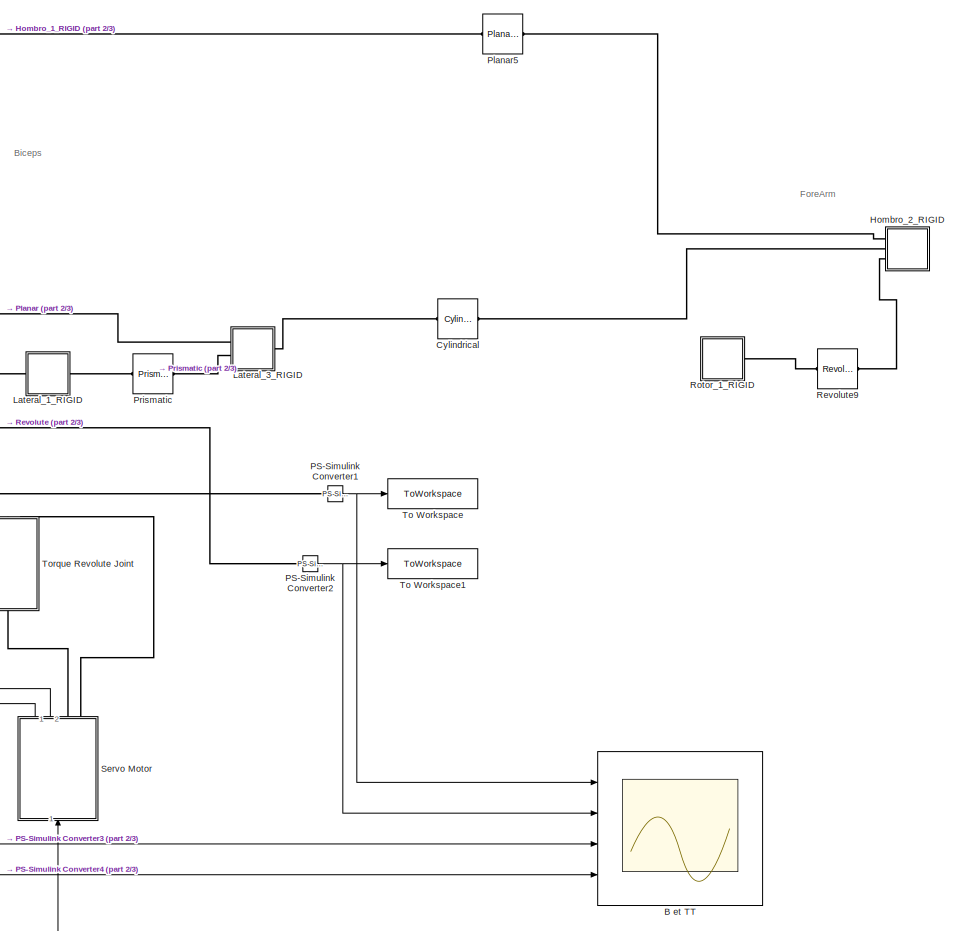
[diagram: root canvas - part 1/3, top right region]
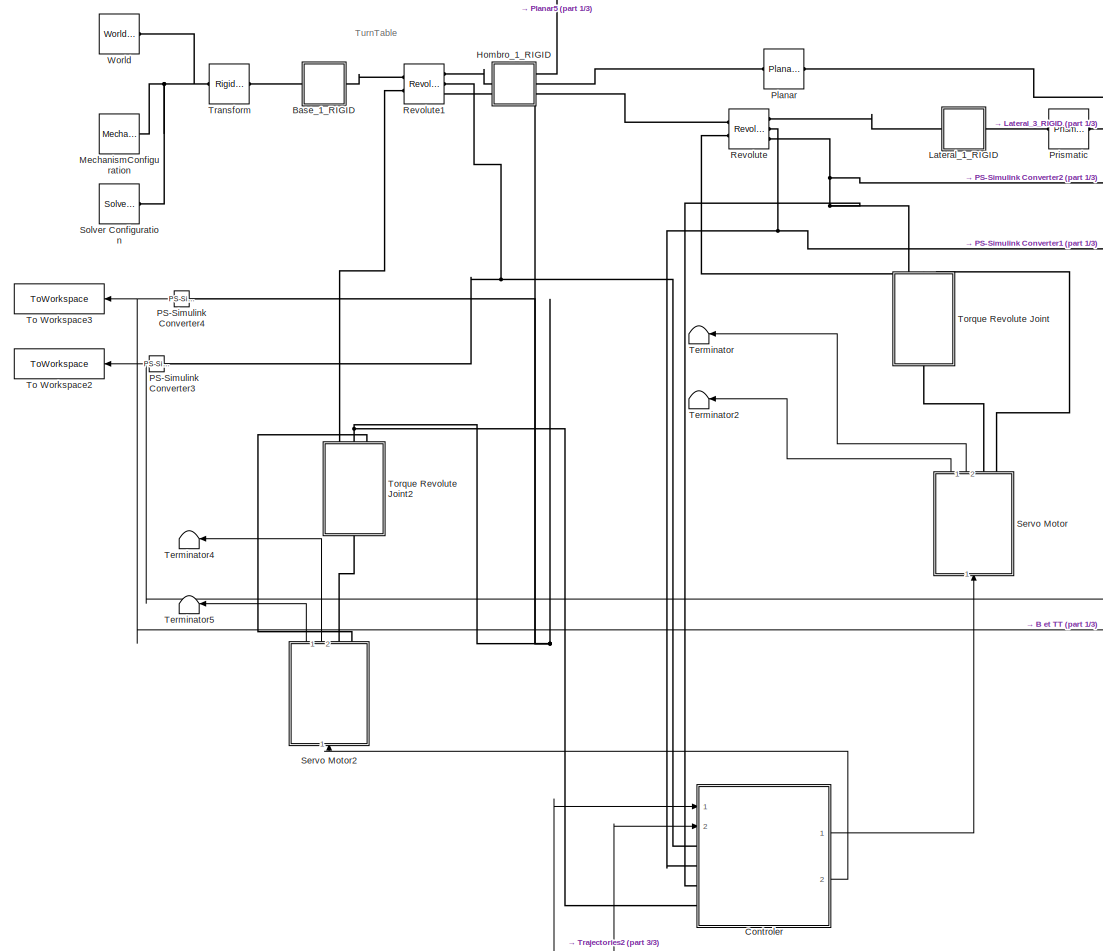
[diagram: root canvas - part 2/3, middle left region]
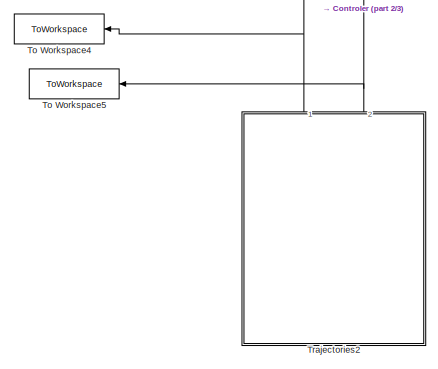
[diagram: root canvas - part 3/3, bottom left region]
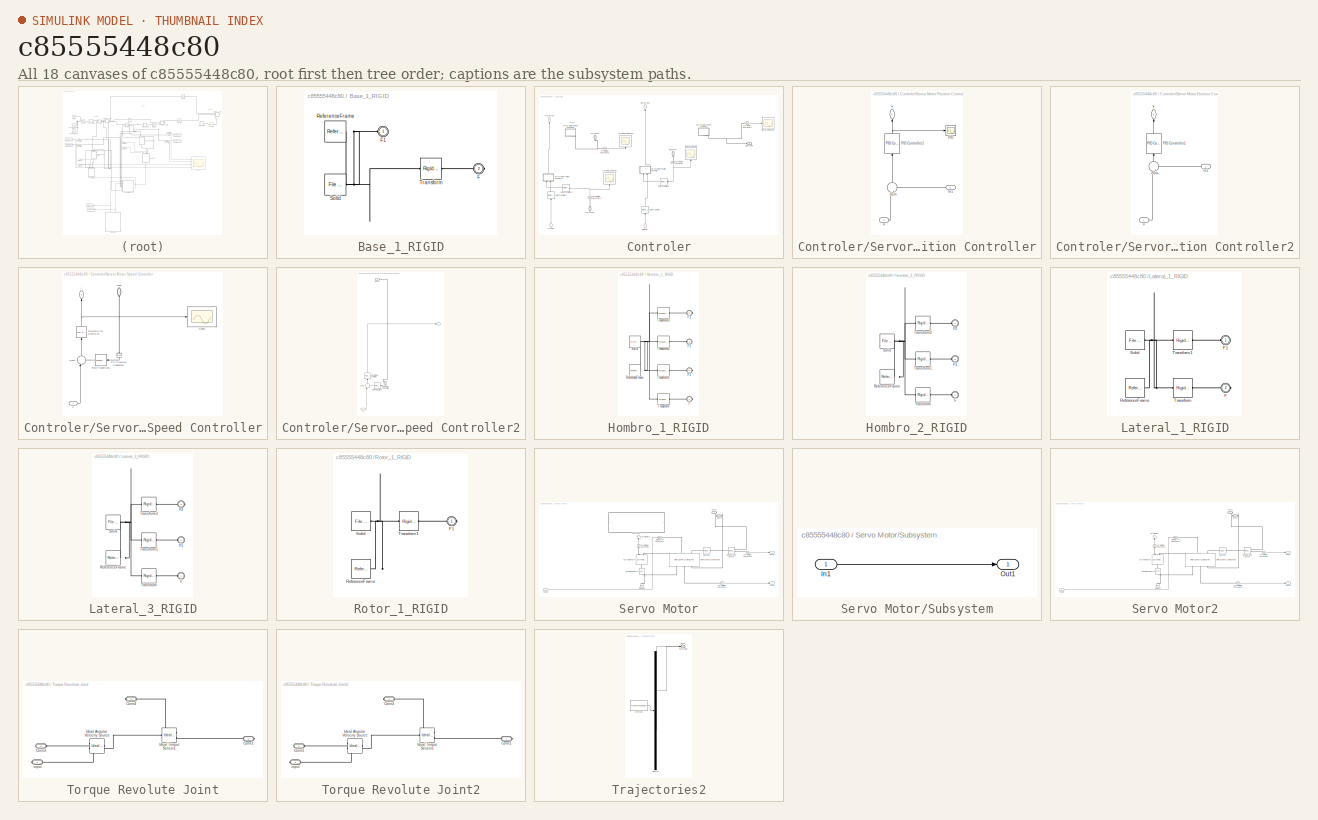
[diagram: thumbnail index - all 18 canvases of the model, root first then tree order]
MODEL slx_c85555448c80
KIND model
CONFIG AbsTol = auto
CONFIG EnableMultiTasking = off
CONFIG FixedStep = auto
CONFIG MaxStep = auto
CONFIG MinStep = auto
CONFIG RelTol = 1e-3
CONFIG SampleTimeConstraint = Unconstrained
CONFIG SolverName = VariableStepAuto
CONFIG StartTime = 0.0
CONFIG StopTime = 60
WORKSPACE source: external: MATLAB File  (data not in archive)
BLOCK [Scope] B et TT
  Floating = off
  NumInputPorts = 4
  Ports = [4]
  ScopeSpecificationString = Simulink.scopes.TimeScopeBlockCfg('CurrentConfiguration', extmgr.ConfigurationSet(extmgr.Configuration('Core','General UI',true),extmgr.Configuration('Core','Source UI',true),extmgr.Configuration('Sources','WiredSimulink',true,'DataLoggingVariableName','ScopeData7'),extmgr.Configuration('Visuals','Time Domain',true,'SerializedDisplays',{struct('MinYLimReal','-223.57397','MaxYLimReal','1936.09273',...<+3539ch>
BLOCK [SubSystem] Base_1_RIGID
  Ports = [0, 0, 0, 0, 0, 1, 1]
  RequestExecContextInheritance = off
BLOCK [PMIOPort] Base_1_RIGID/F
  Port = 2
  Side = Right
BLOCK [PMIOPort] Base_1_RIGID/F1
  Side = Left
BLOCK [Reference] Base_1_RIGID/ReferenceFrame  REF=sm_lib/Frames and
Transforms/Reference
Frame
  Ports = [0, 0, 0, 0, 0, 0, 1]
  SourceBlock = sm_lib/Frames and\nTransforms/Reference\nFrame
  SourceProductBaseCode = MS
  SourceType = Reference\nFrame
BLOCK [Reference] Base_1_RIGID/Solid  REF=sm_lib/Body Elements/File Solid
  Ports = [0, 0, 0, 0, 0, 0, 1]
  SourceBlock = sm_lib/Body Elements/File Solid
  SourceProductBaseCode = MS
  SourceType = File Solid
BLOCK [Reference] Base_1_RIGID/Transform  REF=sm_lib/Frames and
Transforms/Rigid
Transform
  Ports = [0, 0, 0, 0, 0, 1, 1]
  SourceBlock = sm_lib/Frames and\nTransforms/Rigid\nTransform
  SourceProductBaseCode = MS
  SourceType = Rigid\nTransform
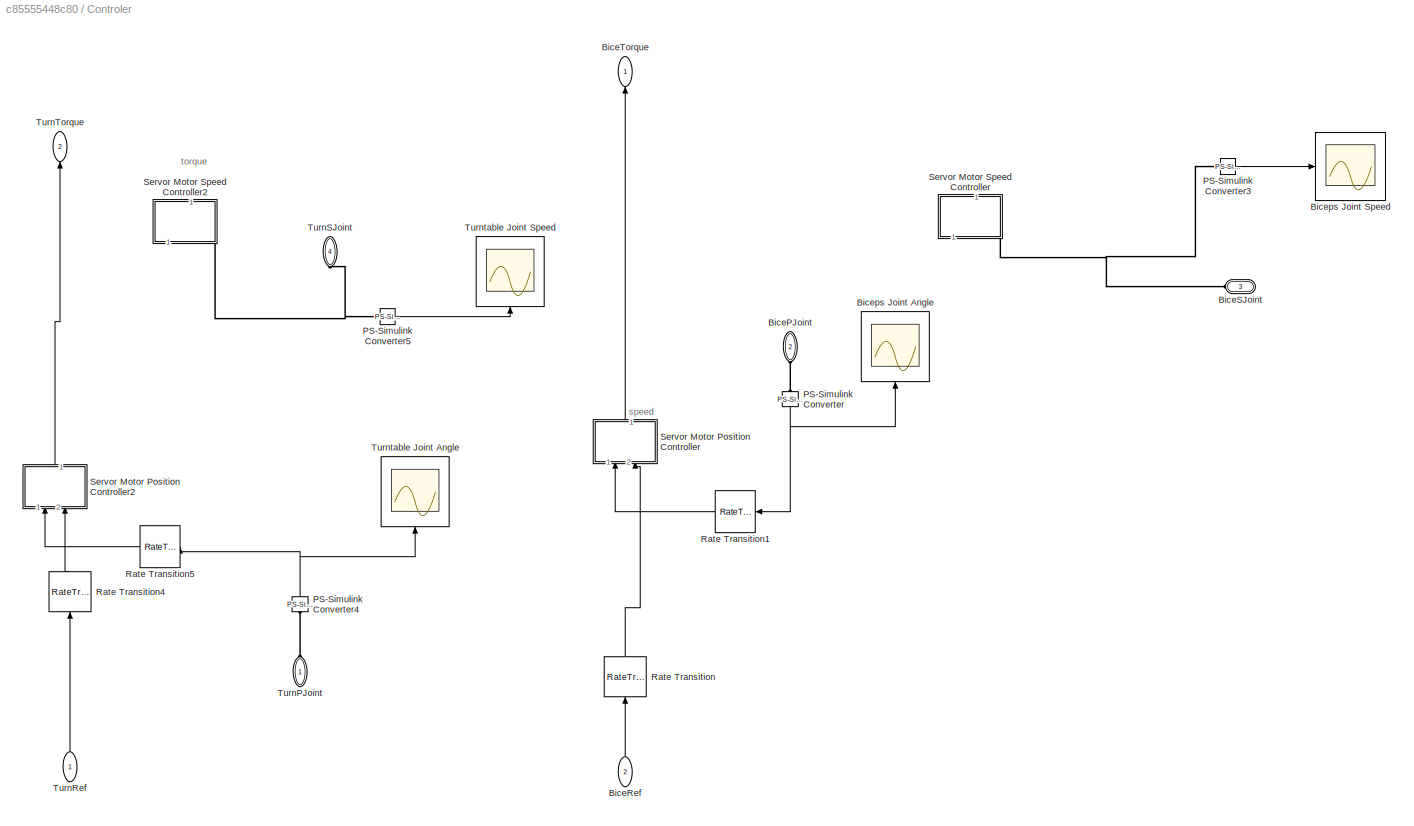
BLOCK [SubSystem] Controler
  Ports = [2, 2, 0, 0, 0, 4]
  RequestExecContextInheritance = off
BLOCK [PMIOPort] Controler/BicePJoint
  NameLocation = left
  Port = 2
  Side = Left
BLOCK [Inport] Controler/BiceRef
  NameLocation = right
  Port = 2
BLOCK [PMIOPort] Controler/BiceSJoint
  NameLocation = top
  Port = 3
  Side = Left
BLOCK [Outport] Controler/BiceTorque
  NameLocation = right
BLOCK [Scope] Controler/Biceps Joint Angle
  Floating = off
  NameLocation = right
  NumInputPorts = 1
  Ports = [1]
  ScopeSpecificationString = Simulink.scopes.TimeScopeBlockCfg('CurrentConfiguration', extmgr.ConfigurationSet(extmgr.Configuration('Core','General UI',true),extmgr.Configuration('Core','Source UI',true),extmgr.Configuration('Sources','WiredSimulink',true),extmgr.Configuration('Visuals','Time Domain',true,'SerializedDisplays',{struct('MinYLimReal','-223.57397','MaxYLimReal','1936.09273','YLabelReal','','MinYLimMag',' 0.00000'...<+1420ch>
BLOCK [Scope] Controler/Biceps Joint Speed
  Floating = off
  NumInputPorts = 1
  Ports = [1]
  ScopeSpecificationString = Simulink.scopes.TimeScopeBlockCfg('CurrentConfiguration', extmgr.ConfigurationSet(extmgr.Configuration('Core','General UI',true),extmgr.Configuration('Core','Source UI',true),extmgr.Configuration('Sources','WiredSimulink',true,'DataLoggingVariableName','ScopeData2'),extmgr.Configuration('Visuals','Time Domain',true,'SerializedDisplays',{struct('MinYLimReal','-245.5225','MaxYLimReal','244.94117','Y...<+1452ch>
BLOCK [Reference] Controler/PS-Simulink Converter  REF=nesl_utility/PS-Simulink
Converter
  NameLocation = left
  Ports = [0, 1, 0, 0, 0, 1]
  SourceBlock = nesl_utility/PS-Simulink\nConverter
  SourceProductBaseCode = PW,SS
  SourceType = PS-Simulink\nConverter
BLOCK [Reference] Controler/PS-Simulink Converter3  REF=nesl_utility/PS-Simulink
Converter
  Ports = [0, 1, 0, 0, 0, 1]
  SourceBlock = nesl_utility/PS-Simulink\nConverter
  SourceProductBaseCode = PW,SS
  SourceType = PS-Simulink\nConverter
BLOCK [Reference] Controler/PS-Simulink Converter4  REF=nesl_utility/PS-Simulink
Converter
  NameLocation = right
  Ports = [0, 1, 0, 0, 0, 1]
  SourceBlock = nesl_utility/PS-Simulink\nConverter
  SourceProductBaseCode = PW,SS
  SourceType = PS-Simulink\nConverter
BLOCK [Reference] Controler/PS-Simulink Converter5  REF=nesl_utility/PS-Simulink
Converter
  Ports = [0, 1, 0, 0, 0, 1]
  SourceBlock = nesl_utility/PS-Simulink\nConverter
  SourceProductBaseCode = PW,SS
  SourceType = PS-Simulink\nConverter
BLOCK [RateTransition] Controler/Rate Transition
  NameLocation = right
BLOCK [RateTransition] Controler/Rate Transition1
  NameLocation = top
BLOCK [RateTransition] Controler/Rate Transition4
  NameLocation = right
BLOCK [RateTransition] Controler/Rate Transition5
  NameLocation = top
BLOCK [SubSystem] Controler/Servor Motor Position Controller
  NameLocation = right
  Ports = [2, 1]
  RequestExecContextInheritance = off
BLOCK [Inport] Controler/Servor Motor Position Controller/In1
  NameLocation = top
BLOCK [Scope] Controler/Servor Motor Position Controller/PID
  Floating = off
  NumInputPorts = 1
  Ports = [1]
  ScopeSpecificationString = Simulink.scopes.TimeScopeBlockCfg('CurrentConfiguration', extmgr.ConfigurationSet(extmgr.Configuration('Core','General UI',true),extmgr.Configuration('Core','Source UI',true),extmgr.Configuration('Sources','WiredSimulink',true,'DataLoggingVariableName','ScopeData1'),extmgr.Configuration('Visuals','Time Domain',true,'SerializedDisplays',{struct('MinYLimReal','-53478.92336','MaxYLimReal','335741.902...<+1442ch>
BLOCK [Reference] Controler/Servor Motor Position Controller/PID Controller1  REF=pid_lib/PID Controller
  NameLocation = right
  Ports = [1, 1]
  SourceBlock = pid_lib/PID Controller
  SourceProductBaseCode = SL
  SourceType = PID 1dof
BLOCK [Sum] Controler/Servor Motor Position Controller/Sum
  Inputs = |+-
  NameLocation = right
  Ports = [2, 1]
BLOCK [Inport] Controler/Servor Motor Position Controller/u
  Port = 2
BLOCK [Outport] Controler/Servor Motor Position Controller/y
  NameLocation = right
BLOCK [SubSystem] Controler/Servor Motor Position Controller2
  NameLocation = right
  Ports = [2, 1]
  RequestExecContextInheritance = off
BLOCK [Inport] Controler/Servor Motor Position Controller2/In1
  NameLocation = top
BLOCK [Reference] Controler/Servor Motor Position Controller2/PID Controller1  REF=pid_lib/PID Controller
  NameLocation = right
  Ports = [1, 1]
  SourceBlock = pid_lib/PID Controller
  SourceProductBaseCode = SL
  SourceType = PID 1dof
BLOCK [Sum] Controler/Servor Motor Position Controller2/Sum
  Inputs = |+-
  NameLocation = right
  Ports = [2, 1]
BLOCK [Inport] Controler/Servor Motor Position Controller2/u
  Port = 2
BLOCK [Outport] Controler/Servor Motor Position Controller2/y
  NameLocation = right
BLOCK [SubSystem] Controler/Servor Motor Speed Controller
  NameLocation = right
  Ports = [1, 1, 0, 0, 0, 1]
  RequestExecContextInheritance = off
BLOCK [Reference] Controler/Servor Motor Speed Controller/Discrete PID Controller  REF=pid_lib/PID Controller
  NameLocation = right
  Ports = [1, 1]
  SourceBlock = pid_lib/PID Controller
  SourceProductBaseCode = SL
  SourceType = PID 1dof
BLOCK [Reference] Controler/Servor Motor Speed Controller/PS-Simulink Converter1  REF=nesl_utility/PS-Simulink
Converter
  NameLocation = left
  Ports = [0, 1, 0, 0, 0, 1]
  SourceBlock = nesl_utility/PS-Simulink\nConverter
  SourceProductBaseCode = PW,SS
  SourceType = PS-Simulink\nConverter
BLOCK [RateTransition] Controler/Servor Motor Speed Controller/Rate Transition1
  NameLocation = top
BLOCK [Scope] Controler/Servor Motor Speed Controller/Speed
  Floating = off
  NumInputPorts = 1
  Ports = [1]
  ScopeSpecificationString = Simulink.scopes.TimeScopeBlockCfg('CurrentConfiguration', extmgr.ConfigurationSet(extmgr.Configuration('Core','General UI',true),extmgr.Configuration('Core','Source UI',true),extmgr.Configuration('Sources','WiredSimulink',true,'DataLoggingVariableName','ScopeData2'),extmgr.Configuration('Visuals','Time Domain',true,'SerializedDisplays',{struct('MinYLimReal','-42854.82755','MaxYLimReal','43824.0057...<+1448ch>
BLOCK [Sum] Controler/Servor Motor Speed Controller/Sum1
  Inputs = |+-
  NameLocation = right
  Ports = [2, 1]
BLOCK [PMIOPort] Controler/Servor Motor Speed Controller/input
  NameLocation = left
  Side = Left
BLOCK [Inport] Controler/Servor Motor Speed Controller/u
BLOCK [Outport] Controler/Servor Motor Speed Controller/y
  NameLocation = right
BLOCK [SubSystem] Controler/Servor Motor Speed Controller2
  NameLocation = right
  Ports = [1, 1, 0, 0, 0, 1]
  RequestExecContextInheritance = off
BLOCK [Reference] Controler/Servor Motor Speed Controller2/Discrete PID Controller  REF=pid_lib/PID Controller
  NameLocation = right
  Ports = [1, 1]
  SourceBlock = pid_lib/PID Controller
  SourceProductBaseCode = SL
  SourceType = PID 1dof
BLOCK [Reference] Controler/Servor Motor Speed Controller2/PS-Simulink Converter1  REF=nesl_utility/PS-Simulink
Converter
  NameLocation = left
  Ports = [0, 1, 0, 0, 0, 1]
  SourceBlock = nesl_utility/PS-Simulink\nConverter
  SourceProductBaseCode = PW,SS
  SourceType = PS-Simulink\nConverter
BLOCK [RateTransition] Controler/Servor Motor Speed Controller2/Rate Transition1
  NameLocation = top
BLOCK [Sum] Controler/Servor Motor Speed Controller2/Sum1
  Inputs = |+-
  NameLocation = right
  Ports = [2, 1]
BLOCK [PMIOPort] Controler/Servor Motor Speed Controller2/input
  Side = Left
BLOCK [Inport] Controler/Servor Motor Speed Controller2/u
BLOCK [Outport] Controler/Servor Motor Speed Controller2/y
BLOCK [PMIOPort] Controler/TurnPJoint
  NameLocation = right
  Side = Left
BLOCK [Inport] Controler/TurnRef
  NameLocation = right
BLOCK [PMIOPort] Controler/TurnSJoint
  NameLocation = left
  Port = 4
  Side = Left
BLOCK [Outport] Controler/TurnTorque
  NameLocation = right
  Port = 2
BLOCK [Scope] Controler/Turntable Joint Angle
  Floating = off
  NameLocation = right
  NumInputPorts = 1
  Ports = [1]
  ScopeSpecificationString = Simulink.scopes.TimeScopeBlockCfg('CurrentConfiguration', extmgr.ConfigurationSet(extmgr.Configuration('Core','General UI',true),extmgr.Configuration('Core','Source UI',true),extmgr.Configuration('Sources','WiredSimulink',true,'DataLoggingVariableName','ScopeData3'),extmgr.Configuration('Visuals','Time Domain',true,'SerializedDisplays',{struct('MinYLimReal','-2839.05971','MaxYLimReal','314.02025',...<+1460ch>
BLOCK [Scope] Controler/Turntable Joint Speed
  Floating = off
  NameLocation = right
  NumInputPorts = 1
  Ports = [1]
  ScopeSpecificationString = Simulink.scopes.TimeScopeBlockCfg('CurrentConfiguration', extmgr.ConfigurationSet(extmgr.Configuration('Core','General UI',true),extmgr.Configuration('Core','Source UI',true),extmgr.Configuration('Sources','WiredSimulink',true,'DataLoggingVariableName','ScopeData4'),extmgr.Configuration('Visuals','Time Domain',true,'SerializedDisplays',{struct('MinYLimReal','-33.83671','MaxYLimReal','32.88338','YL...<+1448ch>
BLOCK [Reference] Cylindrical  REF=sm_lib/Joints/Cylindrical
Joint
  Ports = [0, 0, 0, 0, 0, 1, 1]
  SourceBlock = sm_lib/Joints/Cylindrical\nJoint
  SourceProductBaseCode = MS
  SourceType = Cylindrical\nJoint
BLOCK [SubSystem] Hombro_1_RIGID
  Ports = [0, 0, 0, 0, 0, 1, 3]
  RequestExecContextInheritance = off
BLOCK [PMIOPort] Hombro_1_RIGID/F
  Port = 4
  Side = Right
BLOCK [PMIOPort] Hombro_1_RIGID/F1
  Port = 3
  Side = Right
BLOCK [PMIOPort] Hombro_1_RIGID/F2
  Side = Left
BLOCK [PMIOPort] Hombro_1_RIGID/F3
  Port = 2
  Side = Right
BLOCK [Reference] Hombro_1_RIGID/ReferenceFrame  REF=sm_lib/Frames and
Transforms/Reference
Frame
  Ports = [0, 0, 0, 0, 0, 0, 1]
  SourceBlock = sm_lib/Frames and\nTransforms/Reference\nFrame
  SourceProductBaseCode = MS
  SourceType = Reference\nFrame
BLOCK [Reference] Hombro_1_RIGID/Solid  REF=sm_lib/Body Elements/File Solid
  Ports = [0, 0, 0, 0, 0, 0, 1]
  SourceBlock = sm_lib/Body Elements/File Solid
  SourceProductBaseCode = MS
  SourceType = File Solid
BLOCK [Reference] Hombro_1_RIGID/Transform  REF=sm_lib/Frames and
Transforms/Rigid
Transform
  Ports = [0, 0, 0, 0, 0, 1, 1]
  SourceBlock = sm_lib/Frames and\nTransforms/Rigid\nTransform
  SourceProductBaseCode = MS
  SourceType = Rigid\nTransform
BLOCK [Reference] Hombro_1_RIGID/Transform1  REF=sm_lib/Frames and
Transforms/Rigid
Transform
  Ports = [0, 0, 0, 0, 0, 1, 1]
  SourceBlock = sm_lib/Frames and\nTransforms/Rigid\nTransform
  SourceProductBaseCode = MS
  SourceType = Rigid\nTransform
BLOCK [Reference] Hombro_1_RIGID/Transform2  REF=sm_lib/Frames and
Transforms/Rigid
Transform
  Ports = [0, 0, 0, 0, 0, 1, 1]
  SourceBlock = sm_lib/Frames and\nTransforms/Rigid\nTransform
  SourceProductBaseCode = MS
  SourceType = Rigid\nTransform
BLOCK [Reference] Hombro_1_RIGID/Transform3  REF=sm_lib/Frames and
Transforms/Rigid
Transform
  Ports = [0, 0, 0, 0, 0, 1, 1]
  SourceBlock = sm_lib/Frames and\nTransforms/Rigid\nTransform
  SourceProductBaseCode = MS
  SourceType = Rigid\nTransform
BLOCK [SubSystem] Hombro_2_RIGID
  Ports = [0, 0, 0, 0, 0, 3]
  RequestExecContextInheritance = off
BLOCK [PMIOPort] Hombro_2_RIGID/F
  Port = 2
  Side = Left
BLOCK [PMIOPort] Hombro_2_RIGID/F1
  Port = 3
  Side = Left
BLOCK [PMIOPort] Hombro_2_RIGID/F2
  Side = Left
BLOCK [Reference] Hombro_2_RIGID/ReferenceFrame  REF=sm_lib/Frames and
Transforms/Reference
Frame
  Ports = [0, 0, 0, 0, 0, 0, 1]
  SourceBlock = sm_lib/Frames and\nTransforms/Reference\nFrame
  SourceProductBaseCode = MS
  SourceType = Reference\nFrame
BLOCK [Reference] Hombro_2_RIGID/Solid  REF=sm_lib/Body Elements/File Solid
  Ports = [0, 0, 0, 0, 0, 0, 1]
  SourceBlock = sm_lib/Body Elements/File Solid
  SourceProductBaseCode = MS
  SourceType = File Solid
BLOCK [Reference] Hombro_2_RIGID/Transform  REF=sm_lib/Frames and
Transforms/Rigid
Transform
  Ports = [0, 0, 0, 0, 0, 1, 1]
  SourceBlock = sm_lib/Frames and\nTransforms/Rigid\nTransform
  SourceProductBaseCode = MS
  SourceType = Rigid\nTransform
BLOCK [Reference] Hombro_2_RIGID/Transform1  REF=sm_lib/Frames and
Transforms/Rigid
Transform
  Ports = [0, 0, 0, 0, 0, 1, 1]
  SourceBlock = sm_lib/Frames and\nTransforms/Rigid\nTransform
  SourceProductBaseCode = MS
  SourceType = Rigid\nTransform
BLOCK [Reference] Hombro_2_RIGID/Transform2  REF=sm_lib/Frames and
Transforms/Rigid
Transform
  Ports = [0, 0, 0, 0, 0, 1, 1]
  SourceBlock = sm_lib/Frames and\nTransforms/Rigid\nTransform
  SourceProductBaseCode = MS
  SourceType = Rigid\nTransform
BLOCK [SubSystem] Lateral_1_RIGID
  Ports = [0, 0, 0, 0, 0, 1, 1]
  RequestExecContextInheritance = off
BLOCK [PMIOPort] Lateral_1_RIGID/F
  Port = 2
  Side = Right
BLOCK [PMIOPort] Lateral_1_RIGID/F1
  Side = Left
BLOCK [Reference] Lateral_1_RIGID/ReferenceFrame  REF=sm_lib/Frames and
Transforms/Reference
Frame
  Ports = [0, 0, 0, 0, 0, 0, 1]
  SourceBlock = sm_lib/Frames and\nTransforms/Reference\nFrame
  SourceProductBaseCode = MS
  SourceType = Reference\nFrame
BLOCK [Reference] Lateral_1_RIGID/Solid  REF=sm_lib/Body Elements/File Solid
  Ports = [0, 0, 0, 0, 0, 0, 1]
  SourceBlock = sm_lib/Body Elements/File Solid
  SourceProductBaseCode = MS
  SourceType = File Solid
BLOCK [Reference] Lateral_1_RIGID/Transform  REF=sm_lib/Frames and
Transforms/Rigid
Transform
  Ports = [0, 0, 0, 0, 0, 1, 1]
  SourceBlock = sm_lib/Frames and\nTransforms/Rigid\nTransform
  SourceProductBaseCode = MS
  SourceType = Rigid\nTransform
BLOCK [Reference] Lateral_1_RIGID/Transform1  REF=sm_lib/Frames and
Transforms/Rigid
Transform
  Ports = [0, 0, 0, 0, 0, 1, 1]
  SourceBlock = sm_lib/Frames and\nTransforms/Rigid\nTransform
  SourceProductBaseCode = MS
  SourceType = Rigid\nTransform
BLOCK [SubSystem] Lateral_3_RIGID
  Ports = [0, 0, 0, 0, 0, 2, 1]
  RequestExecContextInheritance = off
BLOCK [PMIOPort] Lateral_3_RIGID/F
  Port = 2
  Side = Left
BLOCK [PMIOPort] Lateral_3_RIGID/F1
  Side = Left
BLOCK [PMIOPort] Lateral_3_RIGID/F2
  Port = 3
  Side = Right
BLOCK [Reference] Lateral_3_RIGID/ReferenceFrame  REF=sm_lib/Frames and
Transforms/Reference
Frame
  Ports = [0, 0, 0, 0, 0, 0, 1]
  SourceBlock = sm_lib/Frames and\nTransforms/Reference\nFrame
  SourceProductBaseCode = MS
  SourceType = Reference\nFrame
BLOCK [Reference] Lateral_3_RIGID/Solid  REF=sm_lib/Body Elements/File Solid
  Ports = [0, 0, 0, 0, 0, 0, 1]
  SourceBlock = sm_lib/Body Elements/File Solid
  SourceProductBaseCode = MS
  SourceType = File Solid
BLOCK [Reference] Lateral_3_RIGID/Transform  REF=sm_lib/Frames and
Transforms/Rigid
Transform
  Ports = [0, 0, 0, 0, 0, 1, 1]
  SourceBlock = sm_lib/Frames and\nTransforms/Rigid\nTransform
  SourceProductBaseCode = MS
  SourceType = Rigid\nTransform
BLOCK [Reference] Lateral_3_RIGID/Transform1  REF=sm_lib/Frames and
Transforms/Rigid
Transform
  Ports = [0, 0, 0, 0, 0, 1, 1]
  SourceBlock = sm_lib/Frames and\nTransforms/Rigid\nTransform
  SourceProductBaseCode = MS
  SourceType = Rigid\nTransform
BLOCK [Reference] Lateral_3_RIGID/Transform2  REF=sm_lib/Frames and
Transforms/Rigid
Transform
  Ports = [0, 0, 0, 0, 0, 1, 1]
  SourceBlock = sm_lib/Frames and\nTransforms/Rigid\nTransform
  SourceProductBaseCode = MS
  SourceType = Rigid\nTransform
BLOCK [Reference] MechanismConfiguration  REF=sm_lib/Utilities/Mechanism
Configuration
  Ports = [0, 0, 0, 0, 0, 0, 1]
  SourceBlock = sm_lib/Utilities/Mechanism\nConfiguration
  SourceProductBaseCode = MS
  SourceType = Mechanism\nConfiguration
BLOCK [Reference] PS-Simulink Converter1  REF=nesl_utility/PS-Simulink
Converter
  Ports = [0, 1, 0, 0, 0, 1]
  SourceBlock = nesl_utility/PS-Simulink\nConverter
  SourceProductBaseCode = PW,SS
  SourceType = PS-Simulink\nConverter
BLOCK [Reference] PS-Simulink Converter2  REF=nesl_utility/PS-Simulink
Converter
  Ports = [0, 1, 0, 0, 0, 1]
  SourceBlock = nesl_utility/PS-Simulink\nConverter
  SourceProductBaseCode = PW,SS
  SourceType = PS-Simulink\nConverter
BLOCK [Reference] PS-Simulink Converter3  REF=nesl_utility/PS-Simulink
Converter
  NameLocation = top
  Ports = [0, 1, 0, 0, 0, 1]
  SourceBlock = nesl_utility/PS-Simulink\nConverter
  SourceProductBaseCode = PW,SS
  SourceType = PS-Simulink\nConverter
BLOCK [Reference] PS-Simulink Converter4  REF=nesl_utility/PS-Simulink
Converter
  NameLocation = top
  Ports = [0, 1, 0, 0, 0, 1]
  SourceBlock = nesl_utility/PS-Simulink\nConverter
  SourceProductBaseCode = PW,SS
  SourceType = PS-Simulink\nConverter
BLOCK [Reference] Planar  REF=sm_lib/Joints/Planar Joint
  Ports = [0, 0, 0, 0, 0, 1, 1]
  SourceBlock = sm_lib/Joints/Planar Joint
  SourceProductBaseCode = MS
  SourceType = Planar Joint
BLOCK [Reference] Planar5  REF=sm_lib/Joints/Planar Joint
  Ports = [0, 0, 0, 0, 0, 1, 1]
  SourceBlock = sm_lib/Joints/Planar Joint
  SourceProductBaseCode = MS
  SourceType = Planar Joint
BLOCK [Reference] Prismatic  REF=sm_lib/Joints/Prismatic
Joint
  Ports = [0, 0, 0, 0, 0, 1, 1]
  SourceBlock = sm_lib/Joints/Prismatic\nJoint
  SourceProductBaseCode = MS
  SourceType = Prismatic\nJoint
BLOCK [Reference] Revolute  REF=sm_lib/Joints/Revolute Joint
  Ports = [0, 0, 0, 0, 0, 2, 3]
  SourceBlock = sm_lib/Joints/Revolute Joint
  SourceProductBaseCode = MS
  SourceType = Revolute Joint
BLOCK [Reference] Revolute1  REF=sm_lib/Joints/Revolute Joint
  Ports = [0, 0, 0, 0, 0, 2, 3]
  SourceBlock = sm_lib/Joints/Revolute Joint
  SourceProductBaseCode = MS
  SourceType = Revolute Joint
BLOCK [Reference] Revolute9  REF=sm_lib/Joints/Revolute Joint
  Ports = [0, 0, 0, 0, 0, 1, 1]
  SourceBlock = sm_lib/Joints/Revolute Joint
  SourceProductBaseCode = MS
  SourceType = Revolute Joint
BLOCK [SubSystem] Rotor_1_RIGID
  Ports = [0, 0, 0, 0, 0, 0, 1]
  RequestExecContextInheritance = off
BLOCK [PMIOPort] Rotor_1_RIGID/F1
  Side = Right
BLOCK [Reference] Rotor_1_RIGID/ReferenceFrame  REF=sm_lib/Frames and
Transforms/Reference
Frame
  Ports = [0, 0, 0, 0, 0, 0, 1]
  SourceBlock = sm_lib/Frames and\nTransforms/Reference\nFrame
  SourceProductBaseCode = MS
  SourceType = Reference\nFrame
BLOCK [Reference] Rotor_1_RIGID/Solid  REF=sm_lib/Body Elements/File Solid
  Ports = [0, 0, 0, 0, 0, 0, 1]
  SourceBlock = sm_lib/Body Elements/File Solid
  SourceProductBaseCode = MS
  SourceType = File Solid
BLOCK [Reference] Rotor_1_RIGID/Transform1  REF=sm_lib/Frames and
Transforms/Rigid
Transform
  Ports = [0, 0, 0, 0, 0, 1, 1]
  SourceBlock = sm_lib/Frames and\nTransforms/Rigid\nTransform
  SourceProductBaseCode = MS
  SourceType = Rigid\nTransform
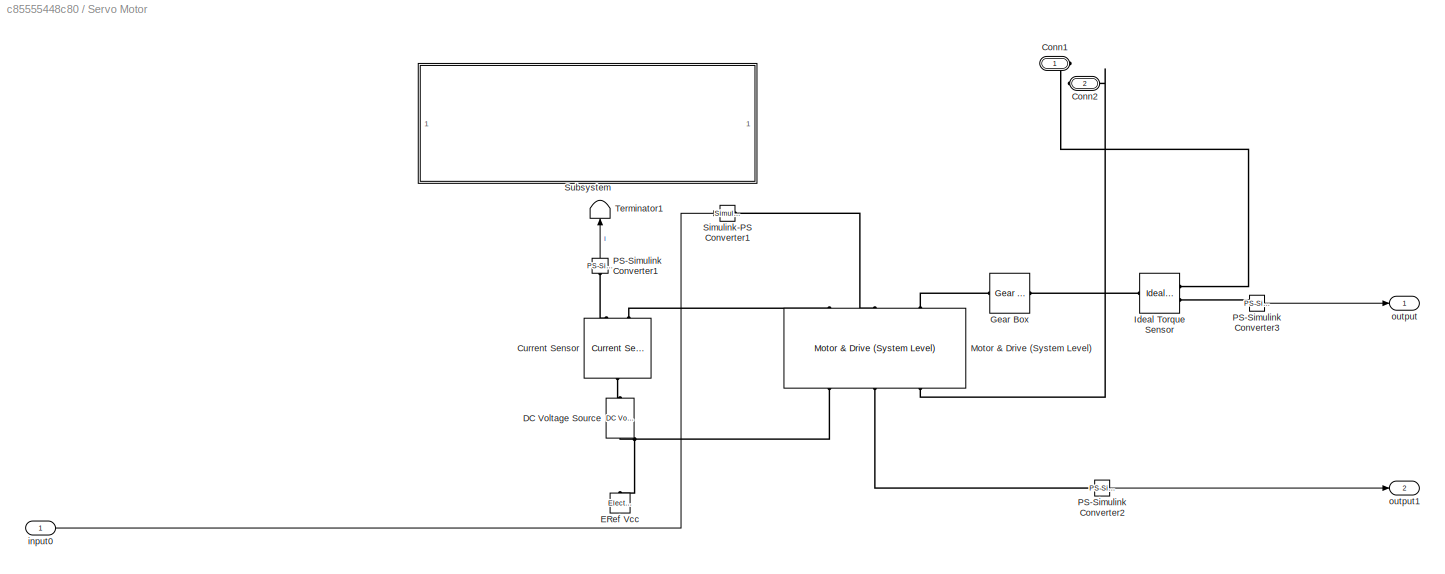
BLOCK [SubSystem] Servo Motor
  NameLocation = right
  Ports = [1, 2, 0, 0, 0, 0, 2]
  RequestExecContextInheritance = off
BLOCK [PMIOPort] Servo Motor/Conn1
  Side = Right
BLOCK [PMIOPort] Servo Motor/Conn2
  Port = 2
  Side = Right
BLOCK [Reference] Servo Motor/Current Sensor  REF=fl_lib/Electrical/Electrical Sensors/Current Sensor
  NameLocation = right
  Ports = [0, 0, 0, 0, 0, 1, 2]
  SourceBlock = fl_lib/Electrical/Electrical Sensors/Current Sensor
  SourceProductBaseCode = SS
  SourceType = Current Sensor
BLOCK [Reference] Servo Motor/DC Voltage Source  REF=fl_lib/Electrical/Electrical Sources/DC Voltage Source
  NameLocation = right
  Ports = [0, 0, 0, 0, 0, 1, 1]
  SourceBlock = fl_lib/Electrical/Electrical Sources/DC Voltage Source
  SourceProductBaseCode = SS
  SourceType = DC Voltage Source
BLOCK [Reference] Servo Motor/ERef Vcc  REF=fl_lib/Electrical/Electrical Elements/Electrical Reference
  NameLocation = right
  Ports = [0, 0, 0, 0, 0, 1]
  SourceBlock = fl_lib/Electrical/Electrical Elements/Electrical Reference
  SourceProductName = Foundation Library
  SourceType = Electrical Reference
BLOCK [Reference] Servo Motor/Gear Box  REF=fl_lib/Mechanical/Mechanisms/Gear Box
  Ports = [0, 0, 0, 0, 0, 1, 1]
  SourceBlock = fl_lib/Mechanical/Mechanisms/Gear Box
  SourceProductBaseCode = SS
  SourceType = Gear Box
BLOCK [Reference] Servo Motor/Ideal Torque Sensor  REF=fl_lib/Mechanical/Mechanical Sensors/Ideal Torque Sensor
  Ports = [0, 0, 0, 0, 0, 1, 2]
  SourceBlock = fl_lib/Mechanical/Mechanical Sensors/Ideal Torque Sensor
  SourceProductBaseCode = SS
  SourceType = Ideal Torque Sensor
BLOCK [Reference] Servo Motor/Motor & Drive (System Level)  REF=ee_lib/Electromechanical/Motor & Drive
(System Level)
  NameLocation = right
  Ports = [0, 0, 0, 0, 0, 3, 3]
  SourceBlock = ee_lib/Electromechanical/Motor & Drive\n(System Level)
  SourceProductBaseCode = PS
  SourceType = Motor & Drive\n(System Level)
BLOCK [Reference] Servo Motor/PS-Simulink Converter1  REF=nesl_utility/PS-Simulink
Converter
  NameLocation = right
  Ports = [0, 1, 0, 0, 0, 1]
  SourceBlock = nesl_utility/PS-Simulink\nConverter
  SourceProductBaseCode = SS
  SourceType = PS-Simulink\nConverter
BLOCK [Reference] Servo Motor/PS-Simulink Converter2  REF=nesl_utility/PS-Simulink
Converter
  Ports = [0, 1, 0, 0, 0, 1]
  SourceBlock = nesl_utility/PS-Simulink\nConverter
  SourceProductBaseCode = PW,SS
  SourceType = PS-Simulink\nConverter
BLOCK [Reference] Servo Motor/PS-Simulink Converter3  REF=nesl_utility/PS-Simulink
Converter
  Ports = [0, 1, 0, 0, 0, 1]
  SourceBlock = nesl_utility/PS-Simulink\nConverter
  SourceProductBaseCode = PW,SS
  SourceType = PS-Simulink\nConverter
BLOCK [Reference] Servo Motor/Simulink-PS Converter1  REF=nesl_utility/Simulink-PS
Converter
  Ports = [1, 0, 0, 0, 0, 0, 1]
  SourceBlock = nesl_utility/Simulink-PS\nConverter
  SourceProductBaseCode = PW,SS
  SourceType = Simulink-PS\nConverter
BLOCK [SubSystem] Servo Motor/Subsystem
  Ports = [1, 1]
  RequestExecContextInheritance = off
BLOCK [Inport] Servo Motor/Subsystem/In1
BLOCK [Outport] Servo Motor/Subsystem/Out1
BLOCK [Terminator] Servo Motor/Terminator1
  NameLocation = right
BLOCK [Inport] Servo Motor/input0
BLOCK [Outport] Servo Motor/output
BLOCK [Outport] Servo Motor/output1
  Port = 2
BLOCK [SubSystem] Servo Motor2
  NameLocation = right
  Ports = [1, 2, 0, 0, 0, 0, 2]
  RequestExecContextInheritance = off
BLOCK [PMIOPort] Servo Motor2/Conn1
  Side = Right
BLOCK [PMIOPort] Servo Motor2/Conn2
  Port = 2
  Side = Right
BLOCK [Reference] Servo Motor2/Current Sensor  REF=fl_lib/Electrical/Electrical Sensors/Current Sensor
  NameLocation = right
  Ports = [0, 0, 0, 0, 0, 1, 2]
  SourceBlock = fl_lib/Electrical/Electrical Sensors/Current Sensor
  SourceProductBaseCode = SS
  SourceType = Current Sensor
BLOCK [Reference] Servo Motor2/DC Voltage Source  REF=fl_lib/Electrical/Electrical Sources/DC Voltage Source
  NameLocation = right
  Ports = [0, 0, 0, 0, 0, 1, 1]
  SourceBlock = fl_lib/Electrical/Electrical Sources/DC Voltage Source
  SourceProductBaseCode = SS
  SourceType = DC Voltage Source
BLOCK [Reference] Servo Motor2/ERef Vcc  REF=fl_lib/Electrical/Electrical Elements/Electrical Reference
  NameLocation = right
  Ports = [0, 0, 0, 0, 0, 1]
  SourceBlock = fl_lib/Electrical/Electrical Elements/Electrical Reference
  SourceProductName = Foundation Library
  SourceType = Electrical Reference
BLOCK [Reference] Servo Motor2/Gear Box  REF=fl_lib/Mechanical/Mechanisms/Gear Box
  Ports = [0, 0, 0, 0, 0, 1, 1]
  SourceBlock = fl_lib/Mechanical/Mechanisms/Gear Box
  SourceProductBaseCode = SS
  SourceType = Gear Box
BLOCK [Reference] Servo Motor2/Ideal Torque Sensor  REF=fl_lib/Mechanical/Mechanical Sensors/Ideal Torque Sensor
  Ports = [0, 0, 0, 0, 0, 1, 2]
  SourceBlock = fl_lib/Mechanical/Mechanical Sensors/Ideal Torque Sensor
  SourceProductBaseCode = SS
  SourceType = Ideal Torque Sensor
BLOCK [Reference] Servo Motor2/Motor & Drive (System Level)  REF=ee_lib/Electromechanical/Motor & Drive
(System Level)
  NameLocation = right
  Ports = [0, 0, 0, 0, 0, 3, 3]
  SourceBlock = ee_lib/Electromechanical/Motor & Drive\n(System Level)
  SourceProductBaseCode = PS
  SourceType = Motor & Drive\n(System Level)
BLOCK [Reference] Servo Motor2/PS-Simulink Converter1  REF=nesl_utility/PS-Simulink
Converter
  NameLocation = right
  Ports = [0, 1, 0, 0, 0, 1]
  SourceBlock = nesl_utility/PS-Simulink\nConverter
  SourceProductBaseCode = SS
  SourceType = PS-Simulink\nConverter
BLOCK [Reference] Servo Motor2/PS-Simulink Converter2  REF=nesl_utility/PS-Simulink
Converter
  Ports = [0, 1, 0, 0, 0, 1]
  SourceBlock = nesl_utility/PS-Simulink\nConverter
  SourceProductBaseCode = PW,SS
  SourceType = PS-Simulink\nConverter
BLOCK [Reference] Servo Motor2/PS-Simulink Converter3  REF=nesl_utility/PS-Simulink
Converter
  Ports = [0, 1, 0, 0, 0, 1]
  SourceBlock = nesl_utility/PS-Simulink\nConverter
  SourceProductBaseCode = PW,SS
  SourceType = PS-Simulink\nConverter
BLOCK [Reference] Servo Motor2/Simulink-PS Converter1  REF=nesl_utility/Simulink-PS
Converter
  Ports = [1, 0, 0, 0, 0, 0, 1]
  SourceBlock = nesl_utility/Simulink-PS\nConverter
  SourceProductBaseCode = PW,SS
  SourceType = Simulink-PS\nConverter
BLOCK [Terminator] Servo Motor2/Terminator1
  NameLocation = right
BLOCK [Inport] Servo Motor2/input0
BLOCK [Outport] Servo Motor2/output
BLOCK [Outport] Servo Motor2/output1
  Port = 2
BLOCK [Reference] Solver Configuration  REF=nesl_utility/Solver
Configuration
  Ports = [0, 0, 0, 0, 0, 0, 1]
  SourceBlock = nesl_utility/Solver\nConfiguration
  SourceProductBaseCode = PW,SS
  SourceType = Solver\nConfiguration
BLOCK [Terminator] Terminator
  NameLocation = top
BLOCK [Terminator] Terminator2
  NameLocation = top
BLOCK [Terminator] Terminator4
  NameLocation = top
BLOCK [Terminator] Terminator5
  NameLocation = top
BLOCK [ToWorkspace] To Workspace
  FixptAsFi = on
  MaxDataPoints = inf
  Ports = [1]
  SampleTime = -1
  VariableName = Bposition
BLOCK [ToWorkspace] To Workspace1
  FixptAsFi = on
  MaxDataPoints = inf
  Ports = [1]
  SampleTime = -1
  VariableName = Bspeed
BLOCK [ToWorkspace] To Workspace2
  FixptAsFi = on
  MaxDataPoints = inf
  NameLocation = top
  Ports = [1]
  SampleTime = -1
  VariableName = TTposition
BLOCK [ToWorkspace] To Workspace3
  FixptAsFi = on
  MaxDataPoints = inf
  NameLocation = top
  Ports = [1]
  SampleTime = -1
  VariableName = TTspeed
BLOCK [ToWorkspace] To Workspace4
  FixptAsFi = on
  MaxDataPoints = inf
  NameLocation = top
  Ports = [1]
  SampleTime = -1
  SaveFormat = Timeseries
  VariableName = TTref
BLOCK [ToWorkspace] To Workspace5
  FixptAsFi = on
  MaxDataPoints = inf
  NameLocation = top
  Ports = [1]
  SampleTime = -1
  SaveFormat = Timeseries
  VariableName = Bref
BLOCK [SubSystem] Torque Revolute Joint
  NameLocation = right
  Ports = [0, 0, 0, 0, 0, 1, 3]
  RequestExecContextInheritance = off
BLOCK [PMIOPort] Torque Revolute Joint/Conn1
  Side = Right
BLOCK [PMIOPort] Torque Revolute Joint/Conn3
  Port = 3
  Side = Left
BLOCK [PMIOPort] Torque Revolute Joint/Conn4
  NameLocation = top
  Port = 4
  Side = Right
BLOCK [Reference] Torque Revolute Joint/Ideal Angular Velocity Source  REF=fl_lib/Mechanical/Mechanical Sources/Ideal Angular
Velocity Source
  NameLocation = top
  Ports = [0, 0, 0, 0, 0, 1, 2]
  SourceBlock = fl_lib/Mechanical/Mechanical Sources/Ideal Angular\nVelocity Source
  SourceProductBaseCode = SS
  SourceType = Ideal Angular\nVelocity Source
BLOCK [Reference] Torque Revolute Joint/Ideal Torque Sensor1  REF=fl_lib/Mechanical/Mechanical Sensors/Ideal Torque Sensor
  Ports = [0, 0, 0, 0, 0, 1, 2]
  SourceBlock = fl_lib/Mechanical/Mechanical Sensors/Ideal Torque Sensor
  SourceProductBaseCode = SS
  SourceType = Ideal Torque Sensor
BLOCK [PMIOPort] Torque Revolute Joint/input
  Port = 2
  Side = Right
BLOCK [SubSystem] Torque Revolute Joint2
  NameLocation = right
  Ports = [0, 0, 0, 0, 0, 1, 3]
  RequestExecContextInheritance = off
BLOCK [PMIOPort] Torque Revolute Joint2/Conn1
  Side = Right
BLOCK [PMIOPort] Torque Revolute Joint2/Conn3
  Port = 3
  Side = Left
BLOCK [PMIOPort] Torque Revolute Joint2/Conn4
  NameLocation = top
  Port = 4
  Side = Right
BLOCK [Reference] Torque Revolute Joint2/Ideal Angular Velocity Source  REF=fl_lib/Mechanical/Mechanical Sources/Ideal Angular
Velocity Source
  NameLocation = top
  Ports = [0, 0, 0, 0, 0, 1, 2]
  SourceBlock = fl_lib/Mechanical/Mechanical Sources/Ideal Angular\nVelocity Source
  SourceProductBaseCode = SS
  SourceType = Ideal Angular\nVelocity Source
BLOCK [Reference] Torque Revolute Joint2/Ideal Torque Sensor1  REF=fl_lib/Mechanical/Mechanical Sensors/Ideal Torque Sensor
  Ports = [0, 0, 0, 0, 0, 1, 2]
  SourceBlock = fl_lib/Mechanical/Mechanical Sensors/Ideal Torque Sensor
  SourceProductBaseCode = SS
  SourceType = Ideal Torque Sensor
BLOCK [PMIOPort] Torque Revolute Joint2/input
  Port = 2
  Side = Right
BLOCK [SubSystem] Trajectories2
  ClipboardFcn = sigbuilder_block('clipboard');
  CloseFcn = sigbuilder_block('close');
  ContinueFcn = sigbuilder_block('continue');
  CopyFcn = sigbuilder_block('copy');
  DeleteFcn = sigbuilder_block('delete');
  LoadFcn = sigbuilder_block('load',[317.25 84 949.5 541.5 ]);
  MaskHideContents = on
  ModelCloseFcn = sigbuilder_block('modelClose');
  NameChangeFcn = sigbuilder_block('namechange');
  NameLocation = right
  OpenFcn = sigbuilder_block('open',[30 104.25 949.5 541.5 ]);
  PauseFcn = sigbuilder_block('pause');
  Ports = [0, 2]
  PreSaveFcn = sigbuilder_block('preSave');
  RequestExecContextInheritance = off
  StartFcn = sigbuilder_block('start');
  StopFcn = sigbuilder_block('stop');
  Tag = STV Subsys
BLOCK [Outport] Trajectories2/Biceps
  Port = 2
  Tag = STV Outport
BLOCK [Demux] Trajectories2/Demux
  DisplayOption = none
  Outputs = 2
  Ports = [1, 2]
  Tag = STV Demux
BLOCK [FromWorkspace] Trajectories2/FromWs
  Tag = STV FromWs
  VariableName = tuvar
BLOCK [Outport] Trajectories2/Turntable
  Tag = STV Outport
BLOCK [Reference] Transform  REF=sm_lib/Frames and
Transforms/Rigid
Transform
  Ports = [0, 0, 0, 0, 0, 1, 1]
  SourceBlock = sm_lib/Frames and\nTransforms/Rigid\nTransform
  SourceProductBaseCode = MS
  SourceType = Rigid\nTransform
BLOCK [Reference] World  REF=sm_lib/Frames and
Transforms/World Frame
  Ports = [0, 0, 0, 0, 0, 0, 1]
  SourceBlock = sm_lib/Frames and\nTransforms/World Frame
  SourceProductBaseCode = MS
  SourceType = World Frame
ANNOTATION (root): TurnTable
ANNOTATION (root): ForeArm
ANNOTATION (root): Biceps
ANNOTATION Controler: speed
ANNOTATION Controler: torque
LINE Controler/BiceRef:1 -> Controler/Rate Transition:1
LINE Controler/PS-Simulink Converter3:1 -> Controler/Biceps Joint Speed:1
NET Controler/PS-Simulink Converter4:1 -> Controler/Rate Transition5:1, Controler/Turntable Joint Angle:1
LINE Controler/PS-Simulink Converter5:1 -> Controler/Turntable Joint Speed:1
NET Controler/PS-Simulink Converter:1 -> Controler/Biceps Joint Angle:1, Controler/Rate Transition1:1
LINE Controler/Rate Transition1:1 -> Controler/Servor Motor Position Controller:1
LINE Controler/Rate Transition4:1 -> Controler/Servor Motor Position Controller2:2
LINE Controler/Rate Transition5:1 -> Controler/Servor Motor Position Controller2:1
LINE Controler/Rate Transition:1 -> Controler/Servor Motor Position Controller:2
LINE Controler/Servor Motor Position Controller/In1:1 -> Controler/Servor Motor Position Controller/Sum:2
NET Controler/Servor Motor Position Controller/PID Controller1:1 -> Controler/Servor Motor Position Controller/PID:1, Controler/Servor Motor Position Controller/y:1
LINE Controler/Servor Motor Position Controller/Sum:1 -> Controler/Servor Motor Position Controller/PID Controller1:1
LINE Controler/Servor Motor Position Controller/u:1 -> Controler/Servor Motor Position Controller/Sum:1
LINE Controler/Servor Motor Position Controller2/In1:1 -> Controler/Servor Motor Position Controller2/Sum:2
LINE Controler/Servor Motor Position Controller2/PID Controller1:1 -> Controler/Servor Motor Position Controller2/y:1
LINE Controler/Servor Motor Position Controller2/Sum:1 -> Controler/Servor Motor Position Controller2/PID Controller1:1
LINE Controler/Servor Motor Position Controller2/u:1 -> Controler/Servor Motor Position Controller2/Sum:1
LINE Controler/Servor Motor Position Controller2:1 -> Controler/TurnTorque:1
LINE Controler/Servor Motor Position Controller:1 -> Controler/BiceTorque:1
NET Controler/Servor Motor Speed Controller/Discrete PID Controller:1 -> Controler/Servor Motor Speed Controller/Speed:1, Controler/Servor Motor Speed Controller/y:1
LINE Controler/Servor Motor Speed Controller/PS-Simulink Converter1:1 -> Controler/Servor Motor Speed Controller/Rate Transition1:1
LINE Controler/Servor Motor Speed Controller/Rate Transition1:1 -> Controler/Servor Motor Speed Controller/Sum1:2
LINE Controler/Servor Motor Speed Controller/Sum1:1 -> Controler/Servor Motor Speed Controller/Discrete PID Controller:1
LINE Controler/Servor Motor Speed Controller/u:1 -> Controler/Servor Motor Speed Controller/Sum1:1
LINE Controler/Servor Motor Speed Controller2/Discrete PID Controller:1 -> Controler/Servor Motor Speed Controller2/y:1
LINE Controler/Servor Motor Speed Controller2/PS-Simulink Converter1:1 -> Controler/Servor Motor Speed Controller2/Rate Transition1:1
LINE Controler/Servor Motor Speed Controller2/Rate Transition1:1 -> Controler/Servor Motor Speed Controller2/Sum1:2
LINE Controler/Servor Motor Speed Controller2/Sum1:1 -> Controler/Servor Motor Speed Controller2/Discrete PID Controller:1
LINE Controler/Servor Motor Speed Controller2/u:1 -> Controler/Servor Motor Speed Controller2/Sum1:1
LINE Controler/TurnRef:1 -> Controler/Rate Transition4:1
LINE Controler:1 -> Servo Motor:1
LINE Controler:2 -> Servo Motor2:1
NET PS-Simulink Converter1:1 -> B et TT:1, To Workspace:1
NET PS-Simulink Converter2:1 -> B et TT:2, To Workspace1:1
NET PS-Simulink Converter3:1 -> B et TT:3, To Workspace2:1
NET PS-Simulink Converter4:1 -> B et TT:4, To Workspace3:1
LINE Servo Motor/PS-Simulink Converter1:1 -> Servo Motor/Terminator1:1
LINE Servo Motor/PS-Simulink Converter2:1 -> Servo Motor/output1:1
LINE Servo Motor/PS-Simulink Converter3:1 -> Servo Motor/output:1
LINE Servo Motor/Subsystem/In1:1 -> Servo Motor/Subsystem/Out1:1
LINE Servo Motor/input0:1 -> Servo Motor/Simulink-PS Converter1:1
LINE Servo Motor2/PS-Simulink Converter1:1 -> Servo Motor2/Terminator1:1
LINE Servo Motor2/PS-Simulink Converter2:1 -> Servo Motor2/output1:1
LINE Servo Motor2/PS-Simulink Converter3:1 -> Servo Motor2/output:1
LINE Servo Motor2/input0:1 -> Servo Motor2/Simulink-PS Converter1:1
LINE Servo Motor2:1 -> Terminator5:1
LINE Servo Motor2:2 -> Terminator4:1
LINE Servo Motor:1 -> Terminator2:1
LINE Servo Motor:2 -> Terminator:1
NET Trajectories2:1 -> Controler:1, To Workspace4:1
NET Trajectories2:2 -> Controler:2, To Workspace5:1
PNET net1: Base_1_RIGID/F1:RConn1 -- Base_1_RIGID/ReferenceFrame:RConn1 -- Base_1_RIGID/Solid:RConn1 -- Base_1_RIGID/Transform:LConn1
PLINE Base_1_RIGID/F:RConn1 -- Base_1_RIGID/Transform:RConn1
PLINE Base_1_RIGID:LConn1 -- Transform:RConn1
PLINE Base_1_RIGID:RConn1 -- Revolute1:LConn1
PLINE Controler/BicePJoint:RConn1 -- Controler/PS-Simulink Converter:LConn1
PNET net2: Controler/BiceSJoint:RConn1 -- Controler/PS-Simulink Converter3:LConn1 -- Controler/Servor Motor Speed Controller:LConn1
PLINE Controler/PS-Simulink Converter4:LConn1 -- Controler/TurnPJoint:RConn1
PNET net3: Controler/PS-Simulink Converter5:LConn1 -- Controler/Servor Motor Speed Controller2:LConn1 -- Controler/TurnSJoint:RConn1
PLINE Controler/Servor Motor Speed Controller/PS-Simulink Converter1:LConn1 -- Controler/Servor Motor Speed Controller/input:RConn1
PLINE Controler/Servor Motor Speed Controller2/PS-Simulink Converter1:LConn1 -- Controler/Servor Motor Speed Controller2/input:RConn1
PNET net4: Controler:LConn1 -- PS-Simulink Converter3:LConn1 -- Revolute1:RConn2
PNET net5: Controler:LConn2 -- PS-Simulink Converter1:LConn1 -- Revolute:RConn2
PNET net6: Controler:LConn3 -- PS-Simulink Converter2:LConn1 -- Revolute:RConn3 -- Torque Revolute Joint:RConn2
PNET net7: Controler:LConn4 -- PS-Simulink Converter4:LConn1 -- Revolute1:RConn3 -- Torque Revolute Joint2:RConn2
PLINE Cylindrical:LConn1 -- Lateral_3_RIGID:RConn1
PLINE Cylindrical:RConn1 -- Hombro_2_RIGID:LConn2
PLINE Hombro_1_RIGID/F1:RConn1 -- Hombro_1_RIGID/Transform1:RConn1
PLINE Hombro_1_RIGID/F2:RConn1 -- Hombro_1_RIGID/Transform2:RConn1
PLINE Hombro_1_RIGID/F3:RConn1 -- Hombro_1_RIGID/Transform3:RConn1
PLINE Hombro_1_RIGID/F:RConn1 -- Hombro_1_RIGID/Transform:RConn1
PNET net8: Hombro_1_RIGID/ReferenceFrame:RConn1 -- Hombro_1_RIGID/Solid:RConn1 -- Hombro_1_RIGID/Transform1:LConn1 -- Hombro_1_RIGID/Transform2:LConn1 -- Hombro_1_RIGID/Transform3:LConn1 -- Hombro_1_RIGID/Transform:LConn1
PLINE Hombro_1_RIGID:LConn1 -- Revolute1:RConn1
PLINE Hombro_1_RIGID:RConn1 -- Planar5:LConn1
PLINE Hombro_1_RIGID:RConn2 -- Planar:LConn1
PLINE Hombro_1_RIGID:RConn3 -- Revolute:LConn1
PLINE Hombro_2_RIGID/F1:RConn1 -- Hombro_2_RIGID/Transform1:RConn1
PLINE Hombro_2_RIGID/F2:RConn1 -- Hombro_2_RIGID/Transform2:RConn1
PLINE Hombro_2_RIGID/F:RConn1 -- Hombro_2_RIGID/Transform:RConn1
PNET net9: Hombro_2_RIGID/ReferenceFrame:RConn1 -- Hombro_2_RIGID/Solid:RConn1 -- Hombro_2_RIGID/Transform1:LConn1 -- Hombro_2_RIGID/Transform2:LConn1 -- Hombro_2_RIGID/Transform:LConn1
PLINE Hombro_2_RIGID:LConn1 -- Planar5:RConn1
PLINE Hombro_2_RIGID:LConn3 -- Revolute9:RConn1
PLINE Lateral_1_RIGID/F1:RConn1 -- Lateral_1_RIGID/Transform1:RConn1
PLINE Lateral_1_RIGID/F:RConn1 -- Lateral_1_RIGID/Transform:RConn1
PNET net10: Lateral_1_RIGID/ReferenceFrame:RConn1 -- Lateral_1_RIGID/Solid:RConn1 -- Lateral_1_RIGID/Transform1:LConn1 -- Lateral_1_RIGID/Transform:LConn1
PLINE Lateral_1_RIGID:LConn1 -- Revolute:RConn1
PLINE Lateral_1_RIGID:RConn1 -- Prismatic:LConn1
PLINE Lateral_3_RIGID/F1:RConn1 -- Lateral_3_RIGID/Transform1:RConn1
PLINE Lateral_3_RIGID/F2:RConn1 -- Lateral_3_RIGID/Transform2:RConn1
PLINE Lateral_3_RIGID/F:RConn1 -- Lateral_3_RIGID/Transform:RConn1
PNET net11: Lateral_3_RIGID/ReferenceFrame:RConn1 -- Lateral_3_RIGID/Solid:RConn1 -- Lateral_3_RIGID/Transform1:LConn1 -- Lateral_3_RIGID/Transform2:LConn1 -- Lateral_3_RIGID/Transform:LConn1
PLINE Lateral_3_RIGID:LConn1 -- Planar:RConn1
PLINE Lateral_3_RIGID:LConn2 -- Prismatic:RConn1
PNET net12: MechanismConfiguration:RConn1 -- Solver Configuration:RConn1 -- Transform:LConn1 -- World:RConn1
PLINE Revolute1:LConn2 -- Torque Revolute Joint2:RConn1
PLINE Revolute9:LConn1 -- Rotor_1_RIGID:RConn1
PLINE Revolute:LConn2 -- Torque Revolute Joint:RConn1
PLINE Rotor_1_RIGID/F1:RConn1 -- Rotor_1_RIGID/Transform1:RConn1
PNET net13: Rotor_1_RIGID/ReferenceFrame:RConn1 -- Rotor_1_RIGID/Solid:RConn1 -- Rotor_1_RIGID/Transform1:LConn1
PLINE Servo Motor/Conn1:RConn1 -- Servo Motor/Ideal Torque Sensor:RConn1
PLINE Servo Motor/Conn2:RConn1 -- Servo Motor/Motor & Drive (System Level):RConn3
PLINE Servo Motor/Current Sensor:LConn1 -- Servo Motor/DC Voltage Source:LConn1
PLINE Servo Motor/Current Sensor:RConn1 -- Servo Motor/PS-Simulink Converter1:LConn1
PLINE Servo Motor/Current Sensor:RConn2 -- Servo Motor/Motor & Drive (System Level):LConn1
PNET net14: Servo Motor/DC Voltage Source:RConn1 -- Servo Motor/ERef Vcc:LConn1 -- Servo Motor/Motor & Drive (System Level):RConn1
PLINE Servo Motor/Gear Box:LConn1 -- Servo Motor/Motor & Drive (System Level):LConn3
PLINE Servo Motor/Gear Box:RConn1 -- Servo Motor/Ideal Torque Sensor:LConn1
PLINE Servo Motor/Ideal Torque Sensor:RConn2 -- Servo Motor/PS-Simulink Converter3:LConn1
PLINE Servo Motor/Motor & Drive (System Level):LConn2 -- Servo Motor/Simulink-PS Converter1:RConn1
PLINE Servo Motor/Motor & Drive (System Level):RConn2 -- Servo Motor/PS-Simulink Converter2:LConn1
PLINE Servo Motor2/Conn1:RConn1 -- Servo Motor2/Ideal Torque Sensor:RConn1
PLINE Servo Motor2/Conn2:RConn1 -- Servo Motor2/Motor & Drive (System Level):RConn3
PLINE Servo Motor2/Current Sensor:LConn1 -- Servo Motor2/DC Voltage Source:LConn1
PLINE Servo Motor2/Current Sensor:RConn1 -- Servo Motor2/PS-Simulink Converter1:LConn1
PLINE Servo Motor2/Current Sensor:RConn2 -- Servo Motor2/Motor & Drive (System Level):LConn1
PNET net15: Servo Motor2/DC Voltage Source:RConn1 -- Servo Motor2/ERef Vcc:LConn1 -- Servo Motor2/Motor & Drive (System Level):RConn1
PLINE Servo Motor2/Gear Box:LConn1 -- Servo Motor2/Motor & Drive (System Level):LConn3
PLINE Servo Motor2/Gear Box:RConn1 -- Servo Motor2/Ideal Torque Sensor:LConn1
PLINE Servo Motor2/Ideal Torque Sensor:RConn2 -- Servo Motor2/PS-Simulink Converter3:LConn1
PLINE Servo Motor2/Motor & Drive (System Level):LConn2 -- Servo Motor2/Simulink-PS Converter1:RConn1
PLINE Servo Motor2/Motor & Drive (System Level):RConn2 -- Servo Motor2/PS-Simulink Converter2:LConn1
PLINE Servo Motor2:RConn1 -- Torque Revolute Joint2:LConn1
PLINE Servo Motor2:RConn2 -- Torque Revolute Joint2:RConn3
PLINE Servo Motor:RConn1 -- Torque Revolute Joint:LConn1
PLINE Servo Motor:RConn2 -- Torque Revolute Joint:RConn3
PLINE Torque Revolute Joint/Conn1:RConn1 -- Torque Revolute Joint/Ideal Torque Sensor1:RConn2
PLINE Torque Revolute Joint/Conn3:RConn1 -- Torque Revolute Joint/Ideal Angular Velocity Source:LConn1
PLINE Torque Revolute Joint/Conn4:RConn1 -- Torque Revolute Joint/Ideal Torque Sensor1:RConn1
PLINE Torque Revolute Joint/Ideal Angular Velocity Source:RConn1 -- Torque Revolute Joint/input:RConn1
PLINE Torque Revolute Joint/Ideal Angular Velocity Source:RConn2 -- Torque Revolute Joint/Ideal Torque Sensor1:LConn1
PLINE Torque Revolute Joint2/Conn1:RConn1 -- Torque Revolute Joint2/Ideal Torque Sensor1:RConn2
PLINE Torque Revolute Joint2/Conn3:RConn1 -- Torque Revolute Joint2/Ideal Angular Velocity Source:LConn1
PLINE Torque Revolute Joint2/Conn4:RConn1 -- Torque Revolute Joint2/Ideal Torque Sensor1:RConn1
PLINE Torque Revolute Joint2/Ideal Angular Velocity Source:RConn1 -- Torque Revolute Joint2/input:RConn1
PLINE Torque Revolute Joint2/Ideal Angular Velocity Source:RConn2 -- Torque Revolute Joint2/Ideal Torque Sensor1:LConn1
note: NET lines group one-source signal fan-out (src -> all destinations, sorted); 1:1 wires keep LINE; PNET lines group multi-terminal physical nets as a canonical sorted terminal list (undirected conserving connections); 2-terminal nets keep the pairwise PLINE form
